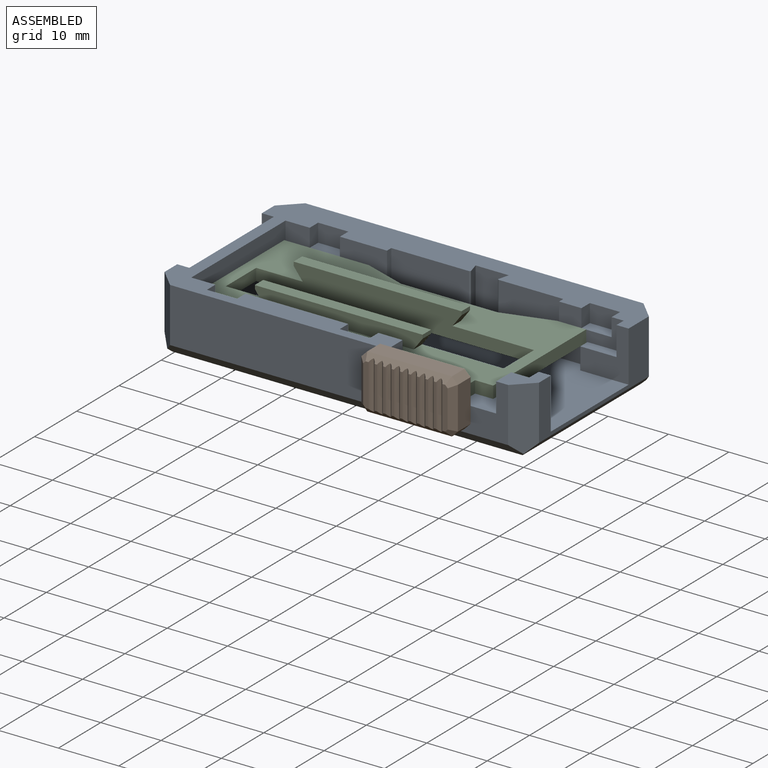
[diagram: assembled view]
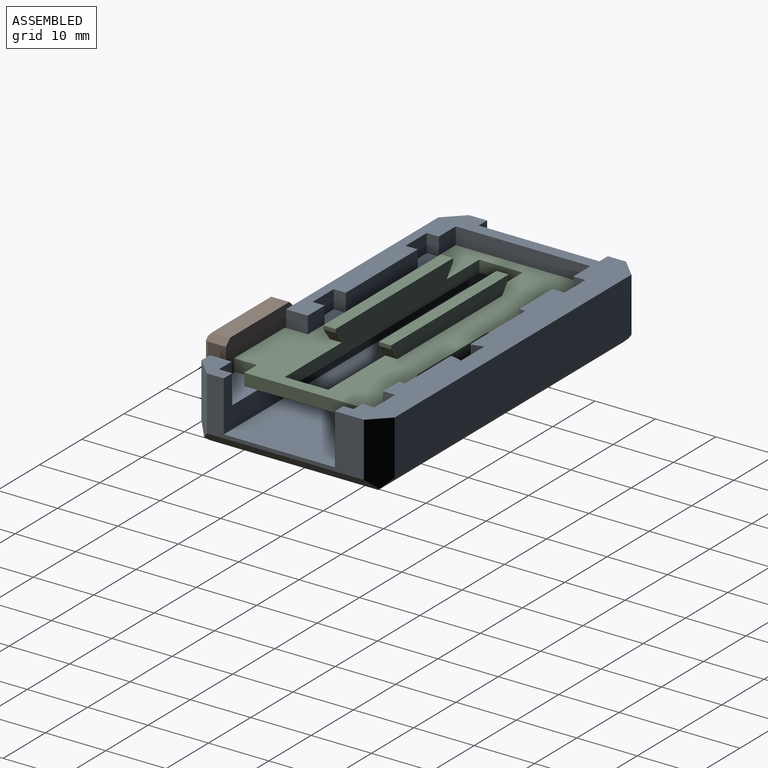
[diagram: assembled view, second angle]
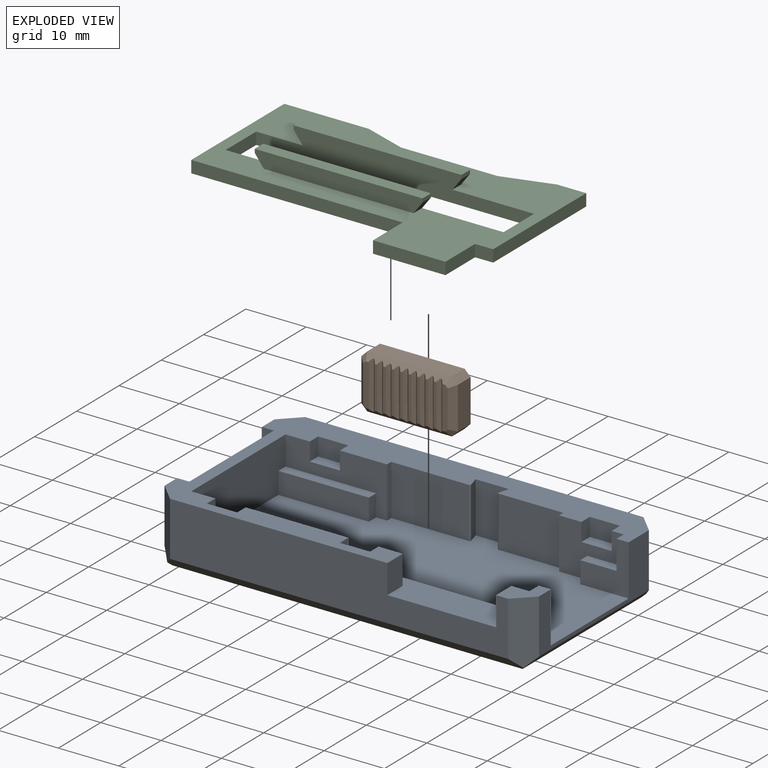
[diagram: exploded view]
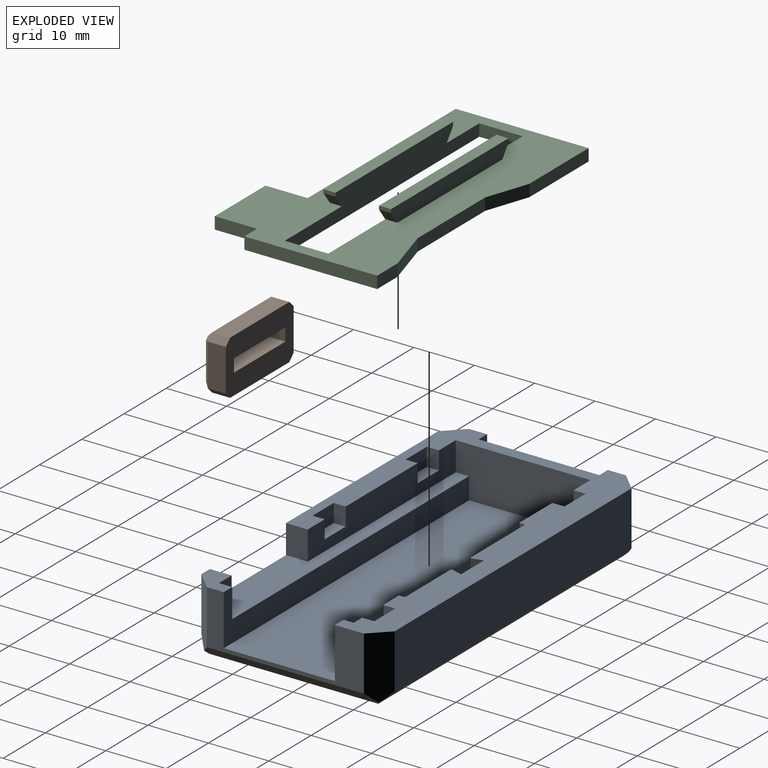
[diagram: exploded view, second angle]
ASSEMBLY  parts=3 mates=2
PART A: 62 faces, bbox 62x32x11 mm
  f0: plane 16.8x8.4mm, normal (0,-1,0), area 72.2mm2, adj f1,f4,f6,f13,f14,f22,f54,f56
  f1: plane 62x32mm, normal (0,0,1), area 479.3mm2, adj f0,f2,f3,f5,f11,f13,f15,f16
  f2: plane 10.7x8.4mm, normal (0,-1,0), area 53.3mm2, adj f1,f7,f8,f14,f21,f23,f42,f43
  f3: plane 12.87x8.4mm, normal (0,-1,0), area 108.1mm2, adj f1,f14,f22,f31
  f4: plane 15x1.7mm, normal (0,0,1), area 25.5mm2, adj f0,f6,f13,f26
  f5: plane 26x9mm, normal (1,0,0), area 79.4mm2, adj f1,f9,f10,f14,f25,f37,f58,f59
  f6: plane 3.6x1.7mm, normal (1,0,0), area 6.1mm2, adj f0,f4,f14,f26
  f7: plane 3.6x1.7mm, normal (-1,0,0), area 6.1mm2, adj f2,f8,f14,f25
  f8: plane 6x1.7mm, normal (0,0,1), area 10.2mm2, adj f2,f7,f21,f25
  f9: plane 58x8.4mm, normal (0,1,0), area 218.4mm2, adj f5,f10,f13,f14,f19,f20
  f10: plane 5.8x5mm, normal (0,0,1), area 17.9mm2, adj f5,f9,f17,f18,f19,f32,f59
  f11: plane 56x9mm, normal (0,1,0), area 504mm2, adj f1,f35,f58,f61
  f12: plane 58x28mm, normal (0,0,-1), area 1624mm2, adj f34,f35,f36,f37
  f13: plane 22.3x8.4mm, normal (1,0,0), area 173.3mm2, adj f0,f1,f4,f9,f14,f15,f20,f26
  f14: plane 58x23.1mm, normal (0,0,1), area 1165.1mm2, adj f0,f2,f3,f5,f6,f7,f9,f13
  f15: plane 35x4.8mm, normal (0,1,0), area 138mm2, adj f1,f13,f16,f20,f46,f47,f49,f50
  f16: plane 4.8x3.6mm, normal (1,0,0), area 17.3mm2, adj f1,f15,f20,f32
  f17: plane 4.8x3.6mm, normal (-1,0,0), area 17.3mm2, adj f10,f18,f20,f32
  f18: plane 4.8x3mm, normal (0,1,0), area 14.4mm2, adj f10,f17,f19,f20
  f19: plane 4.8x2.2mm, normal (-1,0,0), area 10.6mm2, adj f9,f10,f18,f20
  f20: plane 56x5.8mm, normal (0,0,1), area 188mm2, adj f9,f13,f15,f16,f17,f18,f19,f32
  f21: plane 4.8x1.7mm, normal (-1,0,0), area 8.2mm2, adj f1,f2,f8,f25
  f22: plane 8.4x1mm, normal (1,0,0), area 8.4mm2, adj f0,f1,f3,f14
  f23: plane 8.4x1mm, normal (-1,0,0), area 8.4mm2, adj f1,f2,f14,f24
  f24: plane 10.71x8.4mm, normal (0,-1,0), area 89.9mm2, adj f1,f14,f23,f30
  f25: plane 8.4x8mm, normal (0,-1,0), area 38.4mm2, adj f1,f5,f7,f8,f14,f21
  f26: plane 15x3.6mm, normal (0,-1,0), area 54mm2, adj f4,f6,f13,f14
  f27: plane 8.4x1.75mm, normal (-0.96,0.27,0), area 15.2mm2, adj f1,f14,f28,f30
  f28: plane 8.4x5.5mm, normal (0,-1,0), area 46.2mm2, adj f1,f14,f27,f29
  f29: plane 8.4x1.75mm, normal (0.96,0.27,0), area 15.2mm2, adj f1,f14,f28,f31
  f30: cylinder r=0.2mm len=8.4mm, axis (0,0,-1), area 3.1mm2, adj f1,f14,f24,f27
  f31: cylinder r=0.2mm len=8.4mm, axis (0,0,-1), area 3.1mm2, adj f1,f3,f14,f29
  f32: plane 56x9mm, normal (0,-1,0), area 417.6mm2, adj f1,f10,f16,f17,f20,f36,f59,f60
  f33: plane 26x9mm, normal (-1,0,0), area 174mm2, adj f1,f34,f38,f39,f41,f60,f61
  f34: plane 29x2mm, normal (-0.71,0,-0.71), area 78.5mm2, adj f12,f33,f35,f36,f60,f61
  f35: plane 59x2mm, normal (0,0.71,-0.71), area 163.3mm2, adj f11,f12,f34,f37,f58,f61
  f36: plane 59x2mm, normal (0,-0.71,-0.71), area 163.3mm2, adj f12,f32,f34,f37,f59,f60
  f37: plane 29x2mm, normal (0.71,0,-0.71), area 78.5mm2, adj f5,f12,f35,f36,f58,f59
  f38: plane 3x2mm, normal (0,-1,0), area 6mm2, adj f1,f33,f40,f41
  f39: plane 3x2mm, normal (0,1,0), area 6mm2, adj f1,f33,f40,f41
  f40: plane 20x3mm, normal (-1,0,0), area 60mm2, adj f1,f38,f39,f41
  f41: plane 20x2mm, normal (0,0,1), area 40mm2, adj f33,f38,f39,f40
  f42: plane 3x2mm, normal (1,0,0), area 6mm2, adj f1,f2,f44,f45
  f43: plane 3x2mm, normal (-1,0,0), area 6mm2, adj f1,f2,f44,f45
  f44: plane 5x3mm, normal (0,-1,0), area 15mm2, adj f1,f42,f43,f45
  f45: plane 5x2mm, normal (0,0,1), area 10mm2, adj f2,f42,f43,f44
  f46: plane 3x2mm, normal (-1,0,0), area 6mm2, adj f1,f15,f48,f49
  f47: plane 3x2mm, normal (1,0,0), area 6mm2, adj f1,f15,f48,f49
  f48: plane 5x3mm, normal (0,1,0), area 15mm2, adj f1,f46,f47,f49
  f49: plane 5x2mm, normal (0,0,1), area 10mm2, adj f15,f46,f47,f48
  f50: plane 3x2mm, normal (1,0,0), area 6mm2, adj f1,f15,f51,f53
  f51: plane 5x3mm, normal (0,1,0), area 15mm2, adj f1,f50,f52,f53
  f52: plane 3x2mm, normal (-1,0,0), area 6mm2, adj f1,f15,f51,f53
  f53: plane 5x2mm, normal (0,0,1), area 10mm2, adj f15,f50,f51,f52
  f54: plane 3x2mm, normal (-1,0,0), area 6mm2, adj f0,f1,f55,f57
  f55: plane 5x3mm, normal (0,-1,0), area 15mm2, adj f1,f54,f56,f57
  f56: plane 3x2mm, normal (1,0,0), area 6mm2, adj f0,f1,f55,f57
  f57: plane 5x2mm, normal (0,0,1), area 10mm2, adj f0,f54,f55,f56
  f58: plane 10.5x3mm, normal (0.71,0.71,0), area 41.4mm2, adj f1,f5,f11,f35,f37
  f59: plane 10.5x3mm, normal (0.71,-0.71,0), area 41.4mm2, adj f5,f10,f32,f36,f37
  f60: plane 10.5x3mm, normal (-0.71,-0.71,0), area 41.4mm2, adj f1,f32,f33,f34,f36
  f61: plane 10.5x3mm, normal (-0.71,0.71,0), area 41.4mm2, adj f1,f11,f33,f34,f35
PART B: 50 faces, bbox 16x9x4 mm
  f0: plane 7x0.4mm, normal (0,0,1), area 2.8mm2, adj f9,f10,f32,f35
  f1: plane 7x0.4mm, normal (0,0,1), area 2.8mm2, adj f9,f10,f34,f37
  f2: plane 7x0.4mm, normal (0,0,1), area 2.8mm2, adj f9,f10,f36,f39
  f3: plane 7x0.4mm, normal (0,0,1), area 2.8mm2, adj f9,f10,f38,f49
  f4: plane 7x0.9mm, normal (0,0,1), area 6.1mm2, adj f9,f10,f26,f27,f28,f40
  f5: plane 7x0.4mm, normal (0,0,1), area 2.8mm2, adj f9,f10,f41,f42
  f6: plane 7x0.4mm, normal (0,0,1), area 2.8mm2, adj f9,f10,f43,f44
  f7: plane 7x0.4mm, normal (0,0,1), area 2.8mm2, adj f9,f10,f45,f46
  f8: plane 7x0.4mm, normal (0,0,1), area 2.8mm2, adj f9,f10,f47,f48
  f9: plane 14x1mm, normal (0,0.71,0.71), area 15.2mm2, adj f0,f1,f2,f3,f4,f5,f6,f7
  f10: plane 14x1mm, normal (0,-0.71,0.71), area 15.2mm2, adj f0,f1,f2,f3,f4,f5,f6,f7
  f11: plane 7x3mm, normal (1,0,0), area 21mm2, adj f16,f22,f24,f26
  f12: plane 14x3mm, normal (0,1,0), area 42mm2, adj f9,f16,f24,f25
  f13: plane 7x3mm, normal (-1,0,0), area 21mm2, adj f16,f23,f25,f31
  f14: plane 14x3mm, normal (0,-1,0), area 42mm2, adj f10,f16,f22,f23
  f15: plane 7x0.9mm, normal (0,0,1), area 6.1mm2, adj f9,f10,f29,f30,f31,f33
  f16: plane 16x9mm, normal (0,0,-1), area 115.9mm2, adj f11,f12,f13,f14,f17,f18,f19,f20
  f17: plane 3.2x2.15mm, normal (-1,0,0), area 6.9mm2, adj f16,f18,f20,f21
  f18: plane 12.15x3.2mm, normal (0,-1,0), area 38.9mm2, adj f16,f17,f19,f21
  f19: plane 3.2x2.15mm, normal (1,0,0), area 6.9mm2, adj f16,f18,f20,f21
  f20: plane 12.15x3.2mm, normal (0,1,0), area 38.9mm2, adj f16,f17,f19,f21
  f21: plane 12.15x2.15mm, normal (0,0,-1), area 26.1mm2, adj f17,f18,f19,f20
  f22: plane 3x1mm, normal (0.71,-0.71,0), area 4.2mm2, adj f11,f14,f16,f28
  f23: plane 3x1mm, normal (-0.71,-0.71,0), area 4.2mm2, adj f13,f14,f16,f30
  f24: plane 3x1mm, normal (0.71,0.71,0), area 4.2mm2, adj f11,f12,f16,f27
  f25: plane 3x1mm, normal (-0.71,0.71,0), area 4.2mm2, adj f12,f13,f16,f29
  f26: plane 7x1mm, normal (0.71,0,0.71), area 9.3mm2, adj f4,f11,f27,f28
  f27: plane 1.41x1.41mm, normal (0.5,0.5,0.71), area 1.4mm2, adj f4,f9,f24,f26
  f28: plane 1.41x1.41mm, normal (0.5,-0.5,0.71), area 1.4mm2, adj f4,f10,f22,f26
  f29: plane 1.41x1.41mm, normal (-0.5,0.5,0.71), area 1.4mm2, adj f9,f15,f25,f31
  f30: plane 1.41x1.41mm, normal (-0.5,-0.5,0.71), area 1.4mm2, adj f10,f15,f23,f31
  f31: plane 7x1mm, normal (-0.71,0,0.71), area 9.3mm2, adj f13,f15,f29,f30
  f32: cylinder r=1mm len=8.02mm, axis (0,1,0), area 5.5mm2, adj f0,f9,f10,f33
  f33: cylinder r=1mm len=8.02mm, axis (0,1,0), area 5.5mm2, adj f9,f10,f15,f32
  f34: cylinder r=1mm len=8.02mm, axis (0,1,0), area 5.5mm2, adj f1,f9,f10,f35
  f35: cylinder r=1mm len=8.02mm, axis (0,1,0), area 5.5mm2, adj f0,f9,f10,f34
  f36: cylinder r=1mm len=8.02mm, axis (0,1,0), area 5.5mm2, adj f2,f9,f10,f37
  f37: cylinder r=1mm len=8.02mm, axis (0,1,0), area 5.5mm2, adj f1,f9,f10,f36
  f38: cylinder r=1mm len=8.02mm, axis (0,1,0), area 5.5mm2, adj f3,f9,f10,f39
  f39: cylinder r=1mm len=8.02mm, axis (0,1,0), area 5.5mm2, adj f2,f9,f10,f38
  f40: cylinder r=1mm len=8.02mm, axis (0,1,0), area 5.5mm2, adj f4,f9,f10,f41
  f41: cylinder r=1mm len=8.02mm, axis (0,1,0), area 5.5mm2, adj f5,f9,f10,f40
  f42: cylinder r=1mm len=8.02mm, axis (0,1,0), area 5.5mm2, adj f5,f9,f10,f43
  f43: cylinder r=1mm len=8.02mm, axis (0,1,0), area 5.5mm2, adj f6,f9,f10,f42
  f44: cylinder r=1mm len=8.02mm, axis (0,1,0), area 5.5mm2, adj f6,f9,f10,f45
  f45: cylinder r=1mm len=8.02mm, axis (0,1,0), area 5.5mm2, adj f7,f9,f10,f44
  f46: cylinder r=1mm len=8.02mm, axis (0,1,0), area 5.5mm2, adj f7,f9,f10,f47
  f47: cylinder r=1mm len=8.02mm, axis (0,1,0), area 5.5mm2, adj f8,f9,f10,f46
  f48: cylinder r=1mm len=8.02mm, axis (0,1,0), area 5.5mm2, adj f8,f9,f10,f49
  f49: cylinder r=1mm len=8.02mm, axis (0,1,0), area 5.5mm2, adj f3,f9,f10,f48
PART C: 30 faces, bbox 50x29x4.6 mm
  f0: plane 2x0.6mm, normal (-1,0,0), area 1.2mm2, adj f2,f4,f25,f27
  f1: plane 2x0.6mm, normal (1,0,0), area 1.2mm2, adj f2,f4,f25,f26
  f2: plane 46x4.6mm, normal (0,-1,0), area 161.3mm2, adj f0,f1,f5,f6,f19,f20,f25,f26
  f3: plane 46x4.6mm, normal (0,1,0), area 161.3mm2, adj f5,f6,f19,f20,f21,f23,f24,f28
  f4: plane 27.8x2.6mm, normal (0,1,0), area 69.3mm2, adj f0,f1,f5,f25,f26,f27
  f5: plane 50x29mm, normal (0,0,1), area 697mm2, adj f2,f3,f4,f6,f7,f8,f9,f10
  f6: plane 7.2x2mm, normal (-1,0,0), area 14.4mm2, adj f2,f3,f5,f20
  f7: plane 7x2mm, normal (1,0,0), area 14mm2, adj f5,f8,f18,f20
  f8: plane 3x2mm, normal (0,-1,0), area 6mm2, adj f5,f7,f9,f20
  f9: plane 22x2mm, normal (1,0,0), area 44mm2, adj f5,f8,f10,f20
  f10: plane 4.8x2mm, normal (0,1,0), area 9.6mm2, adj f5,f9,f11,f20
  f11: plane 8.2x2.4mm, normal (-0.28,0.96,0), area 17.1mm2, adj f5,f10,f12,f20
  f12: plane 16x2mm, normal (0,1,0), area 32mm2, adj f5,f11,f13,f20
  f13: plane 7x2.4mm, normal (0.32,0.95,0), area 14.8mm2, adj f5,f12,f14,f20
  f14: plane 14x2mm, normal (0,1,0), area 28mm2, adj f5,f13,f15,f20
  f15: plane 22x2mm, normal (-1,0,0), area 44mm2, adj f5,f14,f16,f20
  f16: plane 35x2mm, normal (0,-1,0), area 70mm2, adj f5,f15,f17,f20
  f17: plane 7x2mm, normal (-1,0,0), area 14mm2, adj f5,f16,f18,f20
  f18: plane 12x2mm, normal (0,-1,0), area 24mm2, adj f5,f7,f17,f20
  f19: plane 7.2x2mm, normal (1,0,0), area 14.4mm2, adj f2,f3,f5,f20
  f20: plane 50x29mm, normal (0,0,-1), area 796.2mm2, adj f2,f3,f6,f7,f8,f9,f10,f11
  f21: plane 2x0.6mm, normal (-1,0,0), area 1.2mm2, adj f3,f22,f24,f29
  f22: plane 27.8x2.6mm, normal (0,-1,0), area 69.3mm2, adj f5,f21,f23,f24,f28,f29
  f23: plane 2x0.6mm, normal (1,0,0), area 1.2mm2, adj f3,f22,f24,f28
  f24: plane 27.8x2mm, normal (0,0,1), area 55.6mm2, adj f3,f21,f22,f23
  f25: plane 27.8x2mm, normal (0,0,1), area 55.6mm2, adj f0,f1,f2,f4
  f26: plane 2x2mm, normal (0.8,0,-0.6), area 5mm2, adj f1,f2,f4,f5
  f27: plane 2x2mm, normal (-0.8,0,-0.6), area 5mm2, adj f0,f2,f4,f5
  f28: plane 2x2mm, normal (0.8,0,-0.6), area 5mm2, adj f3,f5,f22,f23
  f29: plane 2x2mm, normal (-0.8,0,-0.6), area 5mm2, adj f3,f5,f21,f22
PLACE A t=(0.37,-10,72.82)mm
PLACE B rot(axis=(1,0,0),90deg) t=(13.29,-27.2,79.94)mm
PLACE C t=(-2.63,-12.4,79.02)mm
MATE planar B.f21 <-> C.f18  axis (0,1,0) through (19.37,-30.4,81.02)mm
MATE planar C.f20 <-> A.f20  axis (0,0,-1) through (-27.63,-23.4,79.02)mm
